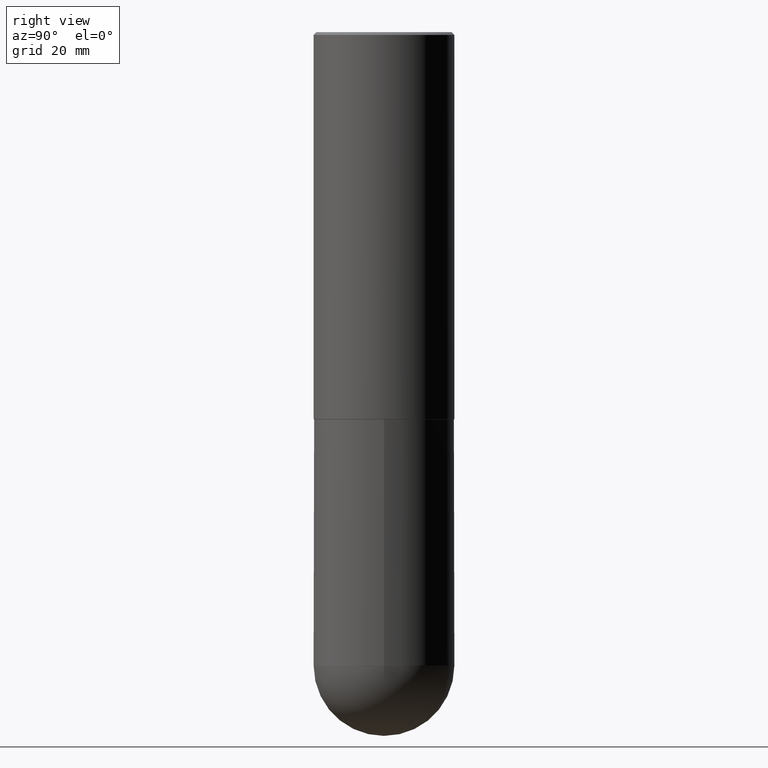
[diagram: clean part render]
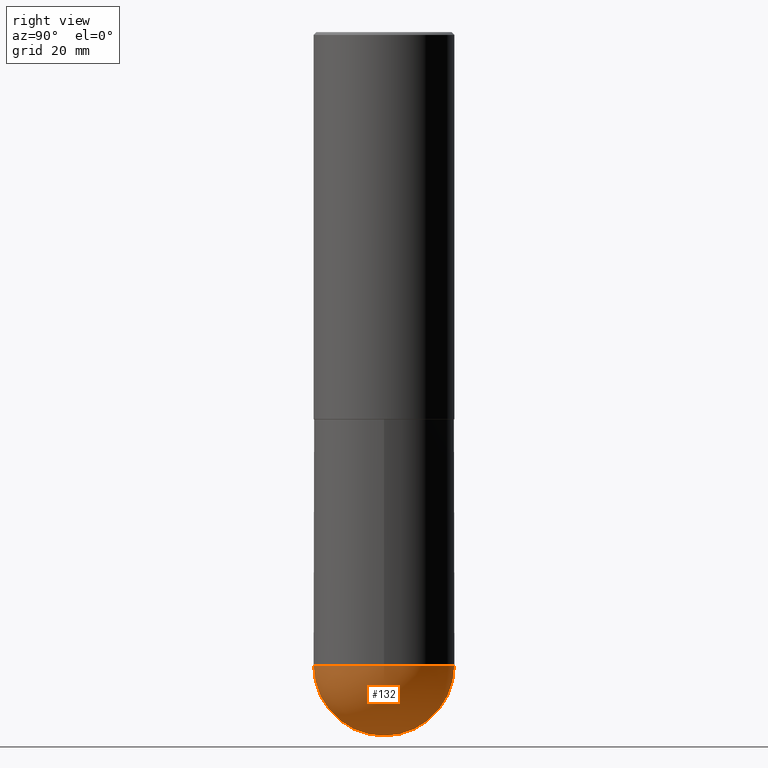
[diagram: same view with one face highlighted and labeled with its STEP entity id]
A machine part, right view. The second image highlights one B-rep face of the part: STEP entity #132.
In plain terms, the highlighted spherical surface has radius 12.7 mm.
Its self-contained STEP definition (entity closure, byte-faithful):
#1 = DIRECTION ( 'NONE',  ( 6.982962677686265922E-15, 1.000000000000000000, -3.278217592397114284E-15 ) ) ;
#4 = AXIS2_PLACEMENT_3D ( 'NONE', #370, #64, #314 ) ;
#7 = CARTESIAN_POINT ( 'NONE',  ( 1.067348984991922956E-28, -1.618584839293420562E-14, -4.500000000000000000 ) ) ;
#11 = EDGE_CURVE ( 'NONE', #402, #353, #230, .T. ) ;
#29 = CARTESIAN_POINT ( 'NONE',  ( 1.067348984991922956E-28, -1.618584839293420562E-14, -4.500000000000000000 ) ) ;
#40 = CARTESIAN_POINT ( 'NONE',  ( 3.491481338843242218E-15, 0.4999999999999841238, -4.500000000000000888 ) ) ;
#45 = EDGE_LOOP ( 'NONE', ( #229, #372, #334, #313 ) ) ;
#54 = DIRECTION ( 'NONE',  ( -7.105427357601001859E-15, -1.000000000000000000, 0.000000000000000000 ) ) ;
#56 = CARTESIAN_POINT ( 'NONE',  ( 1.100460962783311244E-28, -1.571166602479415374E-14, -4.499999999999999112 ) ) ;
#57 = CARTESIAN_POINT ( 'NONE',  ( -3.552713678800393250E-15, -0.5000000000000160982, -4.499999999999998224 ) ) ;
#64 = DIRECTION ( 'NONE',  ( -2.445468806185136597E-29, 3.491481338843145583E-15, 1.000000000000000000 ) ) ;
#89 = CARTESIAN_POINT ( 'NONE',  ( 1.067348984991922956E-28, -1.618584839293420562E-14, -4.500000000000000000 ) ) ;
#90 = VERTEX_POINT ( 'NONE', #359 ) ;
#132 = ADVANCED_FACE ( 'NONE', ( #289 ), #315, .T. ) ;
#148 = VERTEX_POINT ( 'NONE', #57 ) ;
#154 = CIRCLE ( 'NONE', #4, 0.5000000000000000000 ) ;
#155 = DIRECTION ( 'NONE',  ( -2.445468806185136597E-29, 3.491481338843145583E-15, 1.000000000000000000 ) ) ;
#157 = DIRECTION ( 'NONE',  ( 1.000000000000000000, -6.982962677686265922E-15, 4.883557194083112340E-29 ) ) ;
#161 = DIRECTION ( 'NONE',  ( -1.000000000000000000, 6.982962677686265922E-15, -4.883557194083113462E-29 ) ) ;
#184 = AXIS2_PLACEMENT_3D ( 'NONE', #89, #161, #1 ) ;
#211 = CIRCLE ( 'NONE', #325, 0.5000000000000000000 ) ;
#222 = CIRCLE ( 'NONE', #238, 0.5000000000000002220 ) ;
#227 = CARTESIAN_POINT ( 'NONE',  ( 1.191760341024128201E-28, -1.790097289237709482E-14, -5.000000000000000000 ) ) ;
#229 = ORIENTED_EDGE ( 'NONE', *, *, #292, .F. ) ;
#230 = CIRCLE ( 'NONE', #307, 0.5000000000000002220 ) ;
#238 = AXIS2_PLACEMENT_3D ( 'NONE', #7, #375, #54 ) ;
#281 = DIRECTION ( 'NONE',  ( 6.982962677686266711E-15, 1.000000000000000000, 0.000000000000000000 ) ) ;
#289 = FACE_OUTER_BOUND ( 'NONE', #45, .T. ) ;
#292 = EDGE_CURVE ( 'NONE', #402, #148, #222, .T. ) ;
#307 = AXIS2_PLACEMENT_3D ( 'NONE', #29, #157, #281 ) ;
#313 = ORIENTED_EDGE ( 'NONE', *, *, #349, .F. ) ;
#314 = DIRECTION ( 'NONE',  ( 1.000000000000000000, -6.982962677686262766E-15, 0.000000000000000000 ) ) ;
#315 = SPHERICAL_SURFACE ( 'NONE', #184, 0.5000000000000002220 ) ;
#325 = AXIS2_PLACEMENT_3D ( 'NONE', #56, #155, #351 ) ;
#334 = ORIENTED_EDGE ( 'NONE', *, *, #409, .F. ) ;
#349 = EDGE_CURVE ( 'NONE', #148, #90, #154, .T. ) ;
#351 = DIRECTION ( 'NONE',  ( 1.000000000000000000, -6.982962677686262766E-15, 0.000000000000000000 ) ) ;
#353 = VERTEX_POINT ( 'NONE', #40 ) ;
#359 = CARTESIAN_POINT ( 'NONE',  ( 0.5000000000000000000, -1.614810119214953752E-14, -4.499999999999999112 ) ) ;
#370 = CARTESIAN_POINT ( 'NONE',  ( 1.100460962783311244E-28, -1.571166602479415374E-14, -4.499999999999999112 ) ) ;
#372 = ORIENTED_EDGE ( 'NONE', *, *, #11, .T. ) ;
#375 = DIRECTION ( 'NONE',  ( -1.000000000000000000, 7.105427357601001070E-15, -4.926315508542082329E-29 ) ) ;
#402 = VERTEX_POINT ( 'NONE', #227 ) ;
#409 = EDGE_CURVE ( 'NONE', #90, #353, #211, .T. ) ;